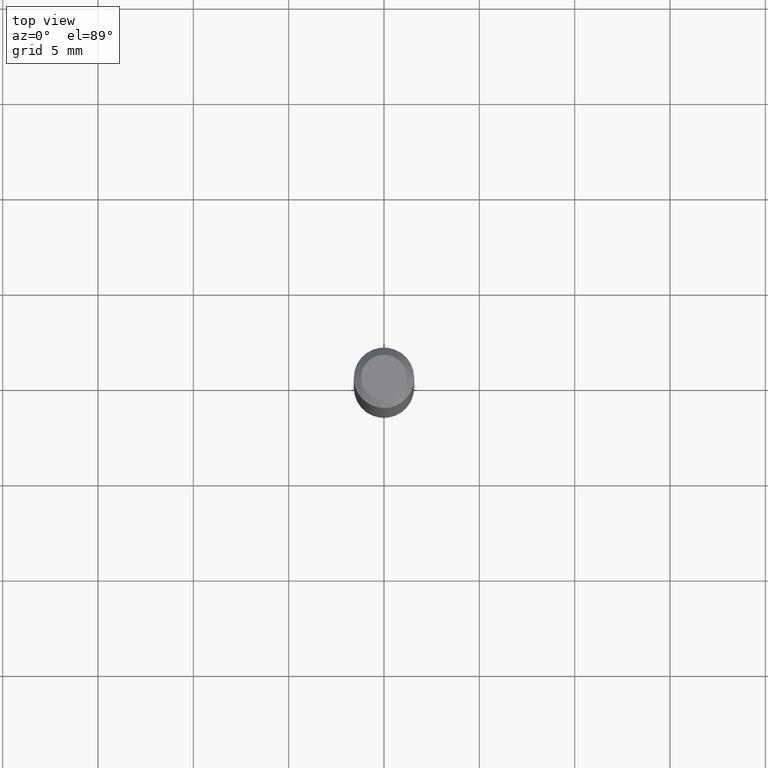
[diagram: clean part render]
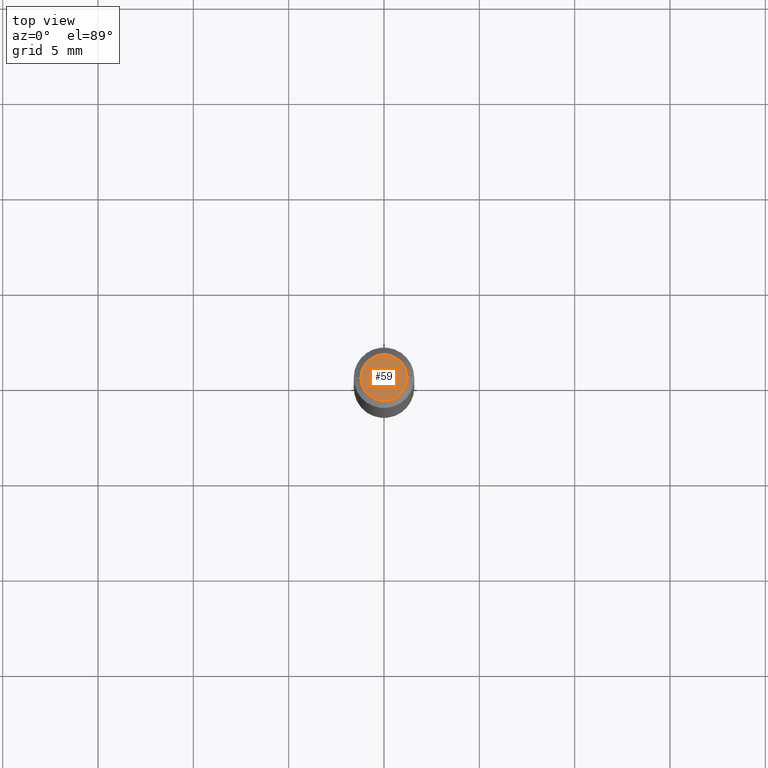
[diagram: same view with one face highlighted and labeled with its STEP entity id]
A machine part, top view. The second image highlights one B-rep face of the part: STEP entity #59.
In plain terms, the highlighted planar face has unit normal (0, -0, -1).
Its self-contained STEP definition (entity closure, byte-faithful):
#7 = DIRECTION ( 'NONE',  ( -1.000000000000000000, 6.982962677686265922E-15, -4.876176775795935793E-29 ) ) ;
#12 = EDGE_LOOP ( 'NONE', ( #169, #277 ) ) ;
#38 = EDGE_CURVE ( 'NONE', #134, #417, #218, .T. ) ;
#46 = DIRECTION ( 'NONE',  ( 1.000000000000000000, -6.982962677686267499E-15, 4.852736867747366768E-29 ) ) ;
#59 = ADVANCED_FACE ( 'NONE', ( #146 ), #294, .F. ) ;
#89 = AXIS2_PLACEMENT_3D ( 'NONE', #254, #403, #447 ) ;
#92 = AXIS2_PLACEMENT_3D ( 'NONE', #405, #220, #7 ) ;
#122 = CARTESIAN_POINT ( 'NONE',  ( 8.901864651713830245E-45, -1.270950348405846147E-30, -3.640146473837256732E-16 ) ) ;
#134 = VERTEX_POINT ( 'NONE', #261 ) ;
#141 = CARTESIAN_POINT ( 'NONE',  ( 0.04749999999999999362, -4.035134999187585033E-16, -3.640146473837231094E-16 ) ) ;
#146 = FACE_OUTER_BOUND ( 'NONE', #12, .T. ) ;
#169 = ORIENTED_EDGE ( 'NONE', *, *, #38, .T. ) ;
#188 = EDGE_CURVE ( 'NONE', #417, #134, #260, .T. ) ;
#218 = CIRCLE ( 'NONE', #406, 0.04749999999999999362 ) ;
#220 = DIRECTION ( 'NONE',  ( 2.438088387897960049E-29, -3.491481338843145188E-15, -1.000000000000000000 ) ) ;
#228 = DIRECTION ( 'NONE',  ( -2.445468806185136597E-29, 3.491481338843145583E-15, 1.000000000000000000 ) ) ;
#254 = CARTESIAN_POINT ( 'NONE',  ( 8.901864651713830245E-45, -1.270950348405846147E-30, -3.640146473837256732E-16 ) ) ;
#260 = CIRCLE ( 'NONE', #89, 0.04749999999999999362 ) ;
#261 = CARTESIAN_POINT ( 'NONE',  ( -0.04749999999999999362, 3.578768372314204096E-16, -3.640146473837280891E-16 ) ) ;
#277 = ORIENTED_EDGE ( 'NONE', *, *, #188, .T. ) ;
#294 = PLANE ( 'NONE',  #92 ) ;
#403 = DIRECTION ( 'NONE',  ( -2.445468806185136597E-29, 3.491481338843145583E-15, 1.000000000000000000 ) ) ;
#405 = CARTESIAN_POINT ( 'NONE',  ( 3.316907271900976096E-16, 0.04749999999999999362, -3.478526872869121837E-16 ) ) ;
#406 = AXIS2_PLACEMENT_3D ( 'NONE', #122, #228, #46 ) ;
#417 = VERTEX_POINT ( 'NONE', #141 ) ;
#447 = DIRECTION ( 'NONE',  ( 1.000000000000000000, -6.982962677686267499E-15, 4.852736867747366768E-29 ) ) ;